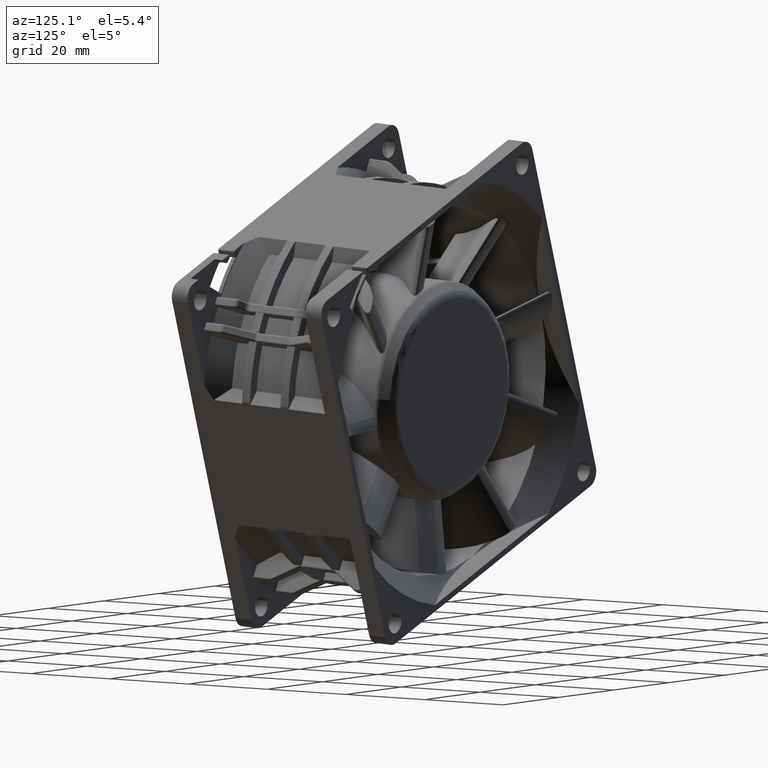
[diagram: clean part render]
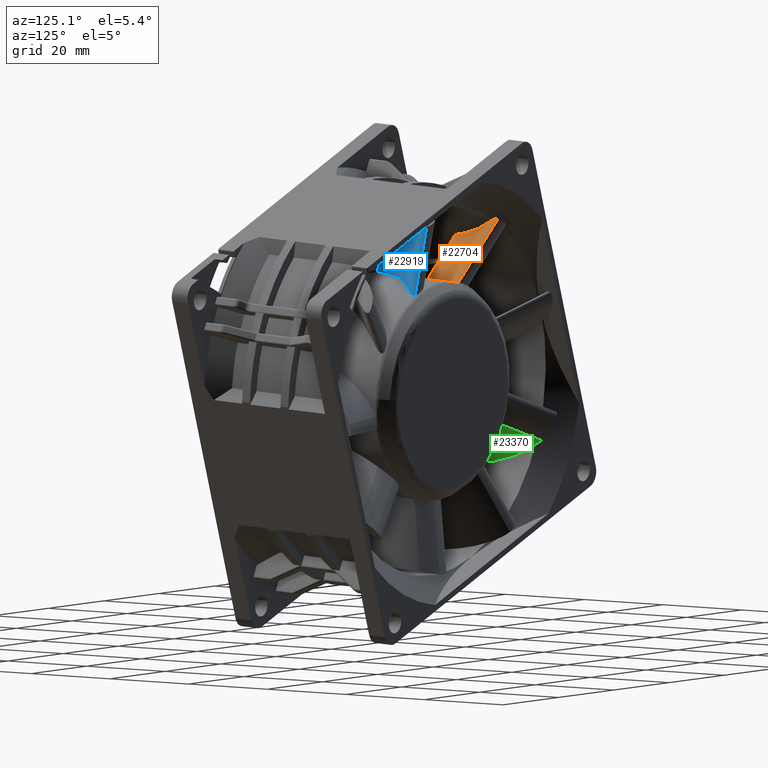
[diagram: same view with three faces highlighted in distinct colors, each labeled with its STEP entity id]
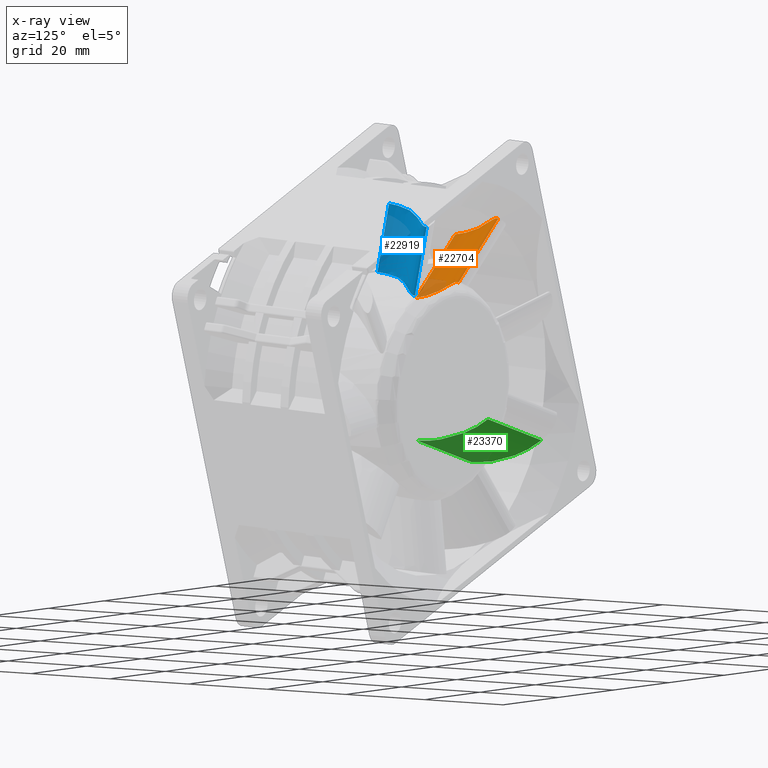
[diagram: x-ray of the same camera — body ghosted, the three highlighted faces saturated]
A machine part, auxiliary view with three faces highlighted in distinct colors.
The next image is the same camera in x-ray (body ghosted, the three faces saturated) — at least one of them is partly hidden behind the body in this view.
Their STEP definitions:

[orange] entity #22704 — the highlighted face is a SurfaceOfExtrusion surface.
#19799=CARTESIAN_POINT('',(3.549328478258E1,-1.329047536180E1,
-8.879601560067E-1));
#19825=DIRECTION('',(-8.365190583410E-1,4.828738773098E-1,-2.589762221597E-1));
#19826=VECTOR('',#19825,1.573341696852E1);
#19827=CARTESIAN_POINT('',(2.952433648728E1,-2.376382844852E1,
-1.892785942185E1));
#19828=LINE('',#19827,#19826);
#19840=CARTESIAN_POINT('',(2.952433648728E1,-2.376382844852E1,
-1.892785942185E1));
#19841=CARTESIAN_POINT('',(2.955868248430E1,-2.372115690006E1,
-1.869668788201E1));
#19842=CARTESIAN_POINT('',(2.964653497294E1,-2.361178899938E1,
-1.821373325984E1));
#19843=CARTESIAN_POINT('',(2.982567520233E1,-2.338524872169E1,
-1.742325371674E1));
#19844=CARTESIAN_POINT('',(3.002611256925E1,-2.312759493593E1,
-1.655639866587E1));
#19845=CARTESIAN_POINT('',(3.027773398589E1,-2.279787313783E1,
-1.559685496907E1));
#19846=CARTESIAN_POINT('',(3.059052325993E1,-2.237710725710E1,
-1.455360265960E1));
#19847=CARTESIAN_POINT('',(3.094650019218E1,-2.188319242514E1,
-1.341602564508E1));
#19848=CARTESIAN_POINT('',(3.137966612832E1,-2.125947090370E1,
-1.216811637779E1));
#19849=CARTESIAN_POINT('',(3.187983362224E1,-2.050310378849E1,
-1.081983256840E1));
#19850=CARTESIAN_POINT('',(3.236390063875E1,-1.972918143011E1,
-9.607369357597E0));
#19851=CARTESIAN_POINT('',(3.278532509070E1,-1.901956446431E1,
-8.582536806967E0));
#19852=CARTESIAN_POINT('',(3.316709975340E1,-1.834494183432E1,
-7.694715361310E0));
#19853=CARTESIAN_POINT('',(3.350314559420E1,-1.772298201250E1,
-6.906820862087E0));
#19854=CARTESIAN_POINT('',(3.380527067259E1,-1.713892034478E1,
-6.224793116004E0));
#19855=CARTESIAN_POINT('',(3.406613513208E1,-1.661365170214E1,
-5.615247119368E0));
#19856=CARTESIAN_POINT('',(3.430069995115E1,-1.612334289100E1,
-5.080905101845E0));
#19857=CARTESIAN_POINT('',(3.450694222444E1,-1.567648968188E1,
-4.598644224361E0));
#19858=CARTESIAN_POINT('',(3.468521263026E1,-1.527752959178E1,
-4.151151046366E0));
#19859=CARTESIAN_POINT('',(3.484158050134E1,-1.491711456767E1,
-3.739067944254E0));
#19860=CARTESIAN_POINT('',(3.497818816780E1,-1.459358430945E1,
-3.356093026859E0));
#19861=CARTESIAN_POINT('',(3.509571747169E1,-1.430829844879E1,
-2.997541398910E0));
#19862=CARTESIAN_POINT('',(3.519389551332E1,-1.406484854213E1,
-2.660658894678E0));
#19863=CARTESIAN_POINT('',(3.528057425572E1,-1.384585012853E1,
-2.355519499720E0));
#19864=CARTESIAN_POINT('',(3.535551158342E1,-1.365319301972E1,
-2.072255583865E0));
#19865=CARTESIAN_POINT('',(3.541591784441E1,-1.349554579345E1,
-1.804411829672E0));
#19866=CARTESIAN_POINT('',(3.545878219634E1,-1.338236459557E1,
-1.551170744606E0));
#19867=CARTESIAN_POINT('',(3.548410535864E1,-1.331499276519E1,
-1.317457691809E0));
#19868=CARTESIAN_POINT('',(3.549559549516E1,-1.328430350397E1,
-1.096838477046E0));
#19869=CARTESIAN_POINT('',(3.549528526570E1,-1.328513291052E1,
-9.564034149135E-1));
#19870=CARTESIAN_POINT('',(3.549328478258E1,-1.329047536180E1,
-8.879601560067E-1));
#19872=DIRECTION('',(8.365163037378E-1,-4.829629131445E-1,2.588190451025E-1));
#19873=VECTOR('',#19872,1.578284329382E1);
#19874=CARTESIAN_POINT('',(2.229067904796E1,-5.667947386913E0,
-4.972860586316E0));
#19875=LINE('',#19874,#19873);
#19880=CARTESIAN_POINT('',(1.636303334029E1,-1.616657239360E1,
-2.300244031002E1));
#19881=CARTESIAN_POINT('',(1.640297638061E1,-1.612614216828E1,
-2.276560563391E1));
#19882=CARTESIAN_POINT('',(1.650299334954E1,-1.601948560846E1,
-2.227207035866E1));
#19883=CARTESIAN_POINT('',(1.670390415911E1,-1.581216534400E1,
-2.148911639837E1));
#19884=CARTESIAN_POINT('',(1.692941884003E1,-1.557030891032E1,
-2.061750770337E1));
#19885=CARTESIAN_POINT('',(1.720969841524E1,-1.526120974932E1,
-1.965326615314E1));
#19886=CARTESIAN_POINT('',(1.756163080875E1,-1.485585012776E1,
-1.858638808756E1));
#19887=CARTESIAN_POINT('',(1.795552688554E1,-1.437920545977E1,
-1.742877101827E1));
#19888=CARTESIAN_POINT('',(1.844557974600E1,-1.374839490272E1,
-1.611759991414E1));
#19889=CARTESIAN_POINT('',(1.898455494764E1,-1.299559452538E1,
-1.474171724404E1));
#19890=CARTESIAN_POINT('',(1.948792173182E1,-1.222582450602E1,
-1.352433906215E1));
#19891=CARTESIAN_POINT('',(1.990726513036E1,-1.152858780159E1,
-1.251601354812E1));
#19892=CARTESIAN_POINT('',(2.028416819153E1,-1.085061321545E1,
-1.163498717044E1));
#19893=CARTESIAN_POINT('',(2.060547332632E1,-1.022585267218E1,
-1.085537386262E1));
#19894=CARTESIAN_POINT('',(2.088966988938E1,-9.630788412197E0,
-1.018221488596E1));
#19895=CARTESIAN_POINT('',(2.112915942700E1,-9.092033522554E0,
-9.576660806591E0));
#19896=CARTESIAN_POINT('',(2.133920302977E1,-8.586565824280E0,
-9.053229844746E0));
#19897=CARTESIAN_POINT('',(2.151723733690E1,-8.128926449222E0,
-8.580638286381E0));
#19898=CARTESIAN_POINT('',(2.166733607177E1,-7.719017604105E0,
-8.145103323105E0));
#19899=CARTESIAN_POINT('',(2.179533540933E1,-7.349088653778E0,
-7.745924308187E0));
#19900=CARTESIAN_POINT('',(2.190456148256E1,-7.016140794634E0,
-7.375386171625E0));
#19901=CARTESIAN_POINT('',(2.199586745305E1,-6.723704136185E0,
-7.029625791011E0));
#19902=CARTESIAN_POINT('',(2.207073786709E1,-6.4732381E0,-6.705331121679E0));
#19903=CARTESIAN_POINT('',(2.213596832230E1,-6.246232177921E0,
-6.411339576968E0));
#19904=CARTESIAN_POINT('',(2.219103043717E1,-6.047320266181E0,
-6.138861173397E0));
#19905=CARTESIAN_POINT('',(2.223499506345E1,-5.883202404380E0,
-5.878793445654E0));
#19906=CARTESIAN_POINT('',(2.226563419498E1,-5.765805288214E0,
-5.633859268910E0));
#19907=CARTESIAN_POINT('',(2.228401630200E1,-5.694159507859E0,
-5.402406217115E0));
#19908=CARTESIAN_POINT('',(2.229229643079E1,-5.661583899320E0,
-5.184159972182E0));
#19909=CARTESIAN_POINT('',(2.229213938244E1,-5.662204241315E0,
-5.042415255237E0));
#19910=CARTESIAN_POINT('',(2.229067904796E1,-5.667947386913E0,
-4.972860586316E0));
#20273=CARTESIAN_POINT('',(1.636303334029E1,-1.616657239360E1,
-2.300244031002E1));
#21472=VERTEX_POINT('',#20273);
#21545=VERTEX_POINT('',#19799);
#21546=VERTEX_POINT('',#19840);
#21549=CARTESIAN_POINT('',(2.229067904796E1,-5.667947386913E0,
-4.972860586316E0));
#21550=VERTEX_POINT('',#21549);
#22646=CARTESIAN_POINT('',(1.637329944379E1,-1.622645546129E1,
-2.320941635329E1));
#22647=CARTESIAN_POINT('',(1.636479583610E1,-1.620483152081E1,
-2.314158143803E1));
#22648=CARTESIAN_POINT('',(1.635692190343E1,-1.618174374666E1,
-2.307305011450E1));
#22649=CARTESIAN_POINT('',(1.630967165335E1,-1.602342146914E1,
-2.262490151377E1));
#22650=CARTESIAN_POINT('',(1.628107032668E1,-1.577317337798E1,
-2.206549127744E1));
#22651=CARTESIAN_POINT('',(1.625929237828E1,-1.541646703217E1,
-2.132948073879E1));
#22652=CARTESIAN_POINT('',(1.624548084127E1,-1.513890555945E1,
-2.076690439023E1));
#22653=CARTESIAN_POINT('',(1.624296817642E1,-1.484082766108E1,
-2.020256239909E1));
#22654=CARTESIAN_POINT('',(1.625820831212E1,-1.451634496235E1,
-1.964632633305E1));
#22655=CARTESIAN_POINT('',(1.628051853847E1,-1.418071844504E1,
-1.909214651068E1));
#22656=CARTESIAN_POINT('',(1.630622049307E1,-1.383767346019E1,
-1.853508587743E1));
#22657=CARTESIAN_POINT('',(1.634509895568E1,-1.347480847562E1,
-1.798362776456E1));
#22658=CARTESIAN_POINT('',(1.639223536098E1,-1.309735636350E1,
-1.743163979143E1));
#22659=CARTESIAN_POINT('',(1.644755845879E1,-1.270908253703E1,
-1.688591803057E1));
#22660=CARTESIAN_POINT('',(1.651623874194E1,-1.230291016812E1,
-1.634996823648E1));
#22661=CARTESIAN_POINT('',(1.658620764986E1,-1.189307996643E1,
-1.581135773426E1));
#22662=CARTESIAN_POINT('',(1.666587084258E1,-1.146979926179E1,
-1.527898067282E1));
#22663=CARTESIAN_POINT('',(1.675738822736E1,-1.102944954353E1,
-1.475306574938E1));
#22664=CARTESIAN_POINT('',(1.685246194080E1,-1.058488269482E1,
-1.423077578833E1));
#22665=CARTESIAN_POINT('',(1.695743647387E1,-1.012616591369E1,
-1.371408164597E1));
#22666=CARTESIAN_POINT('',(1.706709044625E1,-9.658985032822E0,
-1.319671746408E1));
#22667=CARTESIAN_POINT('',(1.716657544186E1,-9.260521539667E0,
-1.277471502380E1));
#22668=CARTESIAN_POINT('',(1.725027835747E1,-8.937600533204E0,
-1.244266829830E1));
#22669=CARTESIAN_POINT('',(1.731147554285E1,-8.697255242550E0,
-1.219197029270E1));
#22670=CARTESIAN_POINT('',(1.737412925629E1,-8.452439854746E0,
-1.193763854494E1));
#22671=CARTESIAN_POINT('',(1.746228319996E1,-8.120134937656E0,
-1.160246715268E1));
#22672=CARTESIAN_POINT('',(1.755398889139E1,-7.785830208430E0,
-1.127504348939E1));
#22673=CARTESIAN_POINT('',(1.764562851225E1,-7.452085352886E0,
-1.094845102115E1));
#22674=CARTESIAN_POINT('',(1.771410332185E1,-7.199982703253E0,
-1.069933513623E1));
#22675=CARTESIAN_POINT('',(1.778501477894E1,-6.944139460402E0,
-1.045111457786E1));
#22676=CARTESIAN_POINT('',(1.785856717891E1,-6.687464476621E0,
-1.020987763133E1));
#22677=CARTESIAN_POINT('',(1.793043242765E1,-6.436026165569E0,
-9.972959490622E0));
#22678=CARTESIAN_POINT('',(1.802277757840E1,-6.106572000599E0,
-9.656653868471E0));
#22679=CARTESIAN_POINT('',(1.813348763640E1,-5.700541102584E0,
-9.256810430424E0));
#22680=CARTESIAN_POINT('',(1.823840685965E1,-5.301793673438E0,
-8.851841858165E0));
#22681=CARTESIAN_POINT('',(1.831611689794E1,-4.992146860040E0,
-8.525195830200E0));
#22682=CARTESIAN_POINT('',(1.836985882316E1,-4.767365463149E0,
-8.279444666112E0));
#22683=CARTESIAN_POINT('',(1.841764080493E1,-4.549095831339E0,
-8.026581781049E0));
#22684=CARTESIAN_POINT('',(1.846027252313E1,-4.336901523007E0,
-7.768409690388E0));
#22685=CARTESIAN_POINT('',(1.850214943662E1,-4.127971114218E0,
-7.513888552025E0));
#22686=CARTESIAN_POINT('',(1.854820218926E1,-3.871318194483E0,
-7.183812520210E0));
#22687=CARTESIAN_POINT('',(1.857253360141E1,-3.643231685902E0,
-6.836837661219E0));
#22688=CARTESIAN_POINT('',(1.853675754838E1,-3.500205842356E0,
-6.454317782669E0));
#22689=CARTESIAN_POINT('',(1.848001320407E1,-3.454318628441E0,
-6.185290471957E0));
#22690=CARTESIAN_POINT('',(1.842632188702E1,-3.458141886469E0,
-6.018891703922E0));
#22691=CARTESIAN_POINT('',(1.840135295239E1,-3.465837159286E0,
-5.952550413140E0));
#22693=DIRECTION('',(8.365163037378E-1,-4.829629131445E-1,2.588190451025E-1));
#22694=VECTOR('',#22693,1.E0);
#22695=SURFACE_OF_LINEAR_EXTRUSION('',#22692,#22694);
#22696=ORIENTED_EDGE('',*,*,#22591,.T.);
#22698=ORIENTED_EDGE('',*,*,#22697,.F.);
#22700=ORIENTED_EDGE('',*,*,#22699,.F.);
#22701=ORIENTED_EDGE('',*,*,#22635,.F.);
#22702=EDGE_LOOP('',(#22696,#22698,#22700,#22701));
#22703=FACE_OUTER_BOUND('',#22702,.F.);
#19871=B_SPLINE_CURVE_WITH_KNOTS('',3,(#19840,#19841,#19842,#19843,#19844,
#19845,#19846,#19847,#19848,#19849,#19850,#19851,#19852,#19853,#19854,#19855,
#19856,#19857,#19858,#19859,#19860,#19861,#19862,#19863,#19864,#19865,#19866,
#19867,#19868,#19869,#19870),.UNSPECIFIED.,.F.,.F.,(4,1,1,1,1,1,1,1,1,1,1,1,1,1,
1,1,1,1,1,1,1,1,1,1,1,1,1,1,4),(0.E0,3.571428571429E-2,7.142857142857E-2,
1.071428571429E-1,1.428571428571E-1,1.785714285714E-1,2.142857142857E-1,2.5E-1,
2.857142857143E-1,3.214285714286E-1,3.571428571429E-1,3.928571428571E-1,
4.285714285714E-1,4.642857142857E-1,5.E-1,5.357142857143E-1,5.714285714286E-1,
6.071428571429E-1,6.428571428571E-1,6.785714285714E-1,7.142857142857E-1,7.5E-1,
7.857142857143E-1,8.214285714286E-1,8.571428571429E-1,8.928571428571E-1,
9.285714285714E-1,9.642857142857E-1,1.E0),.UNSPECIFIED.);
#19911=B_SPLINE_CURVE_WITH_KNOTS('',3,(#19880,#19881,#19882,#19883,#19884,
#19885,#19886,#19887,#19888,#19889,#19890,#19891,#19892,#19893,#19894,#19895,
#19896,#19897,#19898,#19899,#19900,#19901,#19902,#19903,#19904,#19905,#19906,
#19907,#19908,#19909,#19910),.UNSPECIFIED.,.F.,.F.,(4,1,1,1,1,1,1,1,1,1,1,1,1,1,
1,1,1,1,1,1,1,1,1,1,1,1,1,1,4),(0.E0,3.571428571429E-2,7.142857142857E-2,
1.071428571429E-1,1.428571428571E-1,1.785714285714E-1,2.142857142857E-1,2.5E-1,
2.857142857143E-1,3.214285714286E-1,3.571428571429E-1,3.928571428571E-1,
4.285714285714E-1,4.642857142857E-1,5.E-1,5.357142857143E-1,5.714285714286E-1,
6.071428571429E-1,6.428571428571E-1,6.785714285714E-1,7.142857142857E-1,7.5E-1,
7.857142857143E-1,8.214285714286E-1,8.571428571429E-1,8.928571428571E-1,
9.285714285714E-1,9.642857142857E-1,1.E0),.UNSPECIFIED.);
#22591=EDGE_CURVE('',#21546,#21545,#19871,.T.);
#22635=EDGE_CURVE('',#21546,#21472,#19828,.T.);
#22692=B_SPLINE_CURVE_WITH_KNOTS('',3,(#22646,#22647,#22648,#22649,#22650,
#22651,#22652,#22653,#22654,#22655,#22656,#22657,#22658,#22659,#22660,#22661,
#22662,#22663,#22664,#22665,#22666,#22667,#22668,#22669,#22670,#22671,#22672,
#22673,#22674,#22675,#22676,#22677,#22678,#22679,#22680,#22681,#22682,#22683,
#22684,#22685,#22686,#22687,#22688,#22689,#22690,#22691),.UNSPECIFIED.,.F.,.F.,(
4,1,1,1,1,1,1,1,1,1,1,1,1,1,1,1,1,1,1,1,1,1,1,1,1,1,1,1,1,1,1,1,1,1,1,1,1,1,1,1,
1,1,1,4),(0.E0,9.802130917789E-3,9.950364144917E-3,6.535927681389E-2,
9.347149926664E-2,1.219611359329E-1,1.512087611536E-1,1.807771789181E-1,
2.100813157191E-1,2.399220393408E-1,2.703579206765E-1,3.005543447873E-1,
3.316516440799E-1,3.623012197482E-1,3.930457365552E-1,4.247585402269E-1,
4.559910377279E-1,4.877341170743E-1,5.195060614917E-1,5.516180550636E-1,
5.842915356401E-1,6.000747088317E-1,6.160255545299E-1,6.325476851251E-1,
6.491350041873E-1,6.817251518368E-1,6.977964688311E-1,7.142521053957E-1,
7.311209057249E-1,7.475286988990E-1,7.634919611819E-1,7.794071820210E-1,
8.112888621984E-1,8.429251505732E-1,8.584835036414E-1,8.737873128445E-1,
8.890830752422E-1,9.046477564437E-1,9.198917027674E-1,9.344854209169E-1,
9.622829387245E-1,9.761064407826E-1,9.902179274187E-1,1.E0),.UNSPECIFIED.);
#22697=EDGE_CURVE('',#21550,#21545,#19875,.T.);
#22699=EDGE_CURVE('',#21472,#21550,#19911,.T.);
#22704=ADVANCED_FACE('',(#22703),#22695,.T.);

[blue] entity #22919 — the highlighted face is a SurfaceOfExtrusion surface.
#19995=CARTESIAN_POINT('',(3.573238646515E1,1.263354888800E1,
-8.879601560054E-1));
#20008=DIRECTION('',(-9.511961214814E-1,-1.678012367478E-1,-2.589762217360E-1));
#20009=VECTOR('',#20008,1.573341696737E1);
#20010=CARTESIAN_POINT('',(3.789204838821E1,7.737289480020E-1,
-1.892785942186E1));
#20011=LINE('',#20010,#20009);
#20027=CARTESIAN_POINT('',(3.789204838821E1,7.737289480020E-1,
-1.892785942186E1));
#20028=CARTESIAN_POINT('',(3.789093021224E1,8.284941135487E-1,
-1.869668922584E1));
#20029=CARTESIAN_POINT('',(3.788792881486E1,9.687442565257E-1,
-1.821373758610E1));
#20030=CARTESIAN_POINT('',(3.787954099041E1,1.257431098412E0,
-1.742326300956E1));
#20031=CARTESIAN_POINT('',(3.786746839385E1,1.583641408976E0,
-1.655641501601E1));
#20032=CARTESIAN_POINT('',(3.784828079627E1,1.997957496894E0,
-1.559687707695E1));
#20033=CARTESIAN_POINT('',(3.781742867733E1,2.521334648987E0,
-1.455363486906E1));
#20034=CARTESIAN_POINT('',(3.777264159151E1,3.128501883328E0,
-1.341607384548E1));
#20035=CARTESIAN_POINT('',(3.770354752102E1,3.884720623791E0,
-1.216817815022E1));
#20036=CARTESIAN_POINT('',(3.760051381851E1,4.785648225652E0,
-1.081986786080E1));
#20037=CARTESIAN_POINT('',(3.747386160179E1,5.689671733759E0,
-9.607385658596E0));
#20038=CARTESIAN_POINT('',(3.734055819950E1,6.504159408732E0,
-8.582548565747E0));
#20039=CARTESIAN_POINT('',(3.719937419100E1,7.266358147210E0,
-7.694717280197E0));
#20040=CARTESIAN_POINT('',(3.705701094259E1,7.958818898889E0,
-6.906816422019E0));
#20041=CARTESIAN_POINT('',(3.691302359200E1,8.600442206446E0,
-6.224785018698E0));
#20042=CARTESIAN_POINT('',(3.677522076887E1,9.170502901629E0,
-5.615237533948E0));
#20043=CARTESIAN_POINT('',(3.663974302299E1,9.696877560566E0,
-5.080895426651E0));
#20044=CARTESIAN_POINT('',(3.651050211288E1,1.017175626829E1,
-4.598634590103E0));
#20045=CARTESIAN_POINT('',(3.639061870161E1,1.059196657216E1,
-4.151142111379E0));
#20046=CARTESIAN_POINT('',(3.627873340869E1,1.096857059038E1,
-3.739060044241E0));
#20047=CARTESIAN_POINT('',(3.617541998959E1,1.130421774574E1,
-3.356086072914E0));
#20048=CARTESIAN_POINT('',(3.608207471263E1,1.159830477241E1,
-2.997535011100E0));
#20049=CARTESIAN_POINT('',(3.600079711673E1,1.184790499494E1,
-2.660653247280E0));
#20050=CARTESIAN_POINT('',(3.592642755077E1,1.207138305894E1,
-2.355514522254E0));
#20051=CARTESIAN_POINT('',(3.585999547937E1,1.226713508017E1,
-2.072251035985E0));
#20052=CARTESIAN_POINT('',(3.580493593736E1,1.242672746402E1,
-1.804407764356E0));
#20053=CARTESIAN_POINT('',(3.576502073917E1,1.254098116120E1,
-1.551167043786E0));
#20054=CARTESIAN_POINT('',(3.574111392519E1,1.260886754638E1,
-1.317455060020E0));
#20055=CARTESIAN_POINT('',(3.573018937517E1,1.263976211625E1,
-1.096837306832E0));
#20056=CARTESIAN_POINT('',(3.573048487332E1,1.263892729866E1,
-9.564030303642E-1));
#20057=CARTESIAN_POINT('',(3.573238646515E1,1.263354888800E1,
-8.879601560054E-1));
#20059=DIRECTION('',(9.512512425642E-1,1.677312594964E-1,2.588190451025E-1));
#20060=VECTOR('',#20059,1.578284329383E1);
#20061=CARTESIAN_POINT('',(2.071893717070E1,9.986272703892E0,
-4.972860586316E0));
#20062=LINE('',#20061,#20060);
#20080=CARTESIAN_POINT('',(2.292648319120E1,-1.866357877391E0,
-2.300244030307E1));
#20081=CARTESIAN_POINT('',(2.293109324625E1,-1.809712142116E0,
-2.276560774075E1));
#20082=CARTESIAN_POINT('',(2.293915281281E1,-1.663722907495E0,
-2.227208727974E1));
#20083=CARTESIAN_POINT('',(2.295979521375E1,-1.375785805061E0,
-2.148918646412E1));
#20084=CARTESIAN_POINT('',(2.297708600767E1,-1.045584787246E0,
-2.061766125017E1));
#20085=CARTESIAN_POINT('',(2.299310640557E1,-6.287117039218E-1,
-1.965353089350E1));
#20086=CARTESIAN_POINT('',(2.300214484424E1,-9.203003677735E-2,
-1.858676204731E1));
#20087=CARTESIAN_POINT('',(2.299751175259E1,5.262155962141E-1,
-1.742923685907E1));
#20088=CARTESIAN_POINT('',(2.296745147311E1,1.324354024694E0,
-1.611814116096E1));
#20089=CARTESIAN_POINT('',(2.289645434491E1,2.247497538511E0,
-1.474219174305E1));
#20090=CARTESIAN_POINT('',(2.278725264655E1,3.160860988391E0,
-1.352460440813E1));
#20091=CARTESIAN_POINT('',(2.266031773700E1,3.964534770867E0,
-1.251625717116E1));
#20092=CARTESIAN_POINT('',(2.251325209033E1,4.726180989740E0,
-1.163518447614E1));
#20093=CARTESIAN_POINT('',(2.235779229812E1,5.411352563757E0,
-1.085552195496E1));
#20094=CARTESIAN_POINT('',(2.219299284198E1,6.049915998355E0,
-1.018231094993E1));
#20095=CARTESIAN_POINT('',(2.203013154498E1,6.616629065863E0,
-9.576693405276E0));
#20096=CARTESIAN_POINT('',(2.186611003338E1,7.138903606203E0,
-9.053210441749E0));
#20097=CARTESIAN_POINT('',(2.170831682603E1,7.603942034293E0,
-8.580589285022E0));
#20098=CARTESIAN_POINT('',(2.155980958961E1,8.014443028468E0,
-8.145040666421E0));
#20099=CARTESIAN_POINT('',(2.142007588259E1,8.380101305593E0,
-7.745859393250E0));
#20100=CARTESIAN_POINT('',(2.128973436512E1,8.705357814167E0,
-7.375324576641E0));
#20101=CARTESIAN_POINT('',(2.117170598017E1,8.988061346784E0,
-7.029565586561E0));
#20102=CARTESIAN_POINT('',(2.106806623538E1,9.228047766930E0,
-6.705277471288E0));
#20103=CARTESIAN_POINT('',(2.097212079116E1,9.443868827454E0,
-6.411292490125E0));
#20104=CARTESIAN_POINT('',(2.088644651026E1,9.631628378219E0,
-6.138822184681E0));
#20105=CARTESIAN_POINT('',(2.081463560975E1,9.785602674572E0,
-5.878759256240E0));
#20106=CARTESIAN_POINT('',(2.076264860589E1,9.895221021017E0,
-5.633830294970E0));
#20107=CARTESIAN_POINT('',(2.073068024901E1,9.961914036561E0,
-5.402386290507E0));
#20108=CARTESIAN_POINT('',(2.071608574256E1,9.992187143181E0,
-5.184151345705E0));
#20109=CARTESIAN_POINT('',(2.071636433186E1,9.991610680113E0,
-5.042412473957E0));
#20110=CARTESIAN_POINT('',(2.071893717070E1,9.986272703892E0,
-4.972860586316E0));
#20214=CARTESIAN_POINT('',(2.292648319120E1,-1.866357877391E0,
-2.300244030307E1));
#21478=VERTEX_POINT('',#20214);
#21558=VERTEX_POINT('',#19995);
#21559=VERTEX_POINT('',#20027);
#21562=CARTESIAN_POINT('',(2.071893717070E1,9.986272703892E0,
-4.972860586316E0));
#21563=VERTEX_POINT('',#21562);
#22861=CARTESIAN_POINT('',(2.297283957383E1,-1.905632024824E0,
-2.320941635208E1));
#22862=CARTESIAN_POINT('',(2.295242583166E1,-1.894533139705E0,
-2.314158143808E1));
#22863=CARTESIAN_POINT('',(2.293155351413E1,-1.881908144976E0,
-2.307305011453E1));
#22864=CARTESIAN_POINT('',(2.279359012429E1,-1.790998119365E0,
-2.262490151377E1));
#22865=CARTESIAN_POINT('',(2.261082386458E1,-1.617681538127E0,
-2.206549127744E1));
#22866=CARTESIAN_POINT('',(2.236485456885E1,-1.358427219489E0,
-2.132948073879E1));
#22867=CARTESIAN_POINT('',(2.217586124208E1,-1.154680680547E0,
-2.076690439023E1));
#22868=CARTESIAN_POINT('',(2.198233564934E1,-9.279548727237E-1,
-2.020256239909E1));
#22869=CARTESIAN_POINT('',(2.178543681230E1,-6.695905340733E-1,
-1.964632633305E1));
#22870=CARTESIAN_POINT('',(2.158679087041E1,-3.981449684582E-1,
-1.909214651068E1));
#22871=CARTESIAN_POINT('',(2.138597464409E1,-1.188363661099E-1,
-1.853508587743E1));
#22872=CARTESIAN_POINT('',(2.118251215826E1,1.841249329705E-1,
-1.798362776456E1));
#22873=CARTESIAN_POINT('',(2.097599919868E1,5.035687232919E-1,
-1.743163979143E1));
#22874=CARTESIAN_POINT('',(2.076880154552E1,8.365647322715E-1,
-1.688591803057E1));
#22875=CARTESIAN_POINT('',(2.056033112864E1,1.191857653461E0,
-1.634996823648E1));
#22876=CARTESIAN_POINT('',(2.035049664603E1,1.550780949169E0,
-1.581135773426E1));
#22877=CARTESIAN_POINT('',(2.013944259977E1,1.926239294060E0,
-1.527898067282E1));
#22878=CARTESIAN_POINT('',(1.992649764100E1,2.322392989768E0,
-1.475306574938E1));
#22879=CARTESIAN_POINT('',(1.971356626884E1,2.724063158832E0,
-1.423077578833E1));
#22880=CARTESIAN_POINT('',(1.949912396330E1,3.142936929171E0,
-1.371408164597E1));
#22881=CARTESIAN_POINT('',(1.928282569780E1,3.571302461683E0,
-1.319671746408E1));
#22882=CARTESIAN_POINT('',(1.910290822956E1,3.940490928933E0,
-1.277471502380E1));
#22883=CARTESIAN_POINT('',(1.895945876107E1,4.241665968546E0,
-1.244266829830E1));
#22884=CARTESIAN_POINT('',(1.885184754999E1,4.465117935395E0,
-1.219197029270E1));
#22885=CARTESIAN_POINT('',(1.874247878106E1,4.692930433511E0,
-1.193763854494E1));
#22886=CARTESIAN_POINT('',(1.859640713641E1,5.004155031405E0,
-1.160246715268E1));
#22887=CARTESIAN_POINT('',(1.845177083393E1,5.319194593728E0,
-1.127504348939E1));
#22888=CARTESIAN_POINT('',(1.830744379831E1,5.633762798580E0,
-1.094845102115E1));
#22889=CARTESIAN_POINT('',(1.819785008614E1,5.870899391610E0,
-1.069933513623E1));
#22890=CARTESIAN_POINT('',(1.808771854728E1,6.112467692112E0,
-1.045111457786E1));
#22891=CARTESIAN_POINT('',(1.797907545526E1,6.356370708489E0,
-1.020987763133E1));
#22892=CARTESIAN_POINT('',(1.787250599876E1,6.595177720910E0,
-9.972959490622E0));
#22893=CARTESIAN_POINT('',(1.773147743315E1,6.906912571965E0,
-9.656653868471E0));
#22894=CARTESIAN_POINT('',(1.755529462748E1,7.289113338676E0,
-9.256810430424E0));
#22895=CARTESIAN_POINT('',(1.737935750857E1,7.662012367702E0,
-8.851841858165E0));
#22896=CARTESIAN_POINT('',(1.723984971656E1,7.949166638201E0,
-8.525195830200E0));
#22897=CARTESIAN_POINT('',(1.713653172292E1,8.155903821858E0,
-8.279444666112E0));
#22898=CARTESIAN_POINT('',(1.703283382964E1,8.353821726256E0,
-8.026581781049E0));
#22899=CARTESIAN_POINT('',(1.692909574823E1,8.543775137252E0,
-7.768409690388E0));
#22900=CARTESIAN_POINT('',(1.682687744704E1,8.730743077026E0,
-7.513888552025E0));
#22901=CARTESIAN_POINT('',(1.669718258550E1,8.956952758789E0,
-7.183812520210E0));
#22902=CARTESIAN_POINT('',(1.656921034692E1,9.147317091493E0,
-6.836837661219E0));
#22903=CARTESIAN_POINT('',(1.644986906020E1,9.233884840551E0,
-6.454317782669E0));
#22904=CARTESIAN_POINT('',(1.637690463802E1,9.232561924341E0,
-6.185290471957E0));
#22905=CARTESIAN_POINT('',(1.633823224583E1,9.195121025425E0,
-6.018891703922E0));
#22906=CARTESIAN_POINT('',(1.632405135822E1,9.173176382634E0,
-5.952550413140E0));
#22908=DIRECTION('',(9.512512425642E-1,1.677312594965E-1,2.588190451025E-1));
#22909=VECTOR('',#22908,1.E0);
#22910=SURFACE_OF_LINEAR_EXTRUSION('',#22907,#22909);
#22911=ORIENTED_EDGE('',*,*,#22806,.T.);
#22913=ORIENTED_EDGE('',*,*,#22912,.F.);
#22915=ORIENTED_EDGE('',*,*,#22914,.F.);
#22916=ORIENTED_EDGE('',*,*,#22850,.F.);
#22917=EDGE_LOOP('',(#22911,#22913,#22915,#22916));
#22918=FACE_OUTER_BOUND('',#22917,.F.);
#20058=B_SPLINE_CURVE_WITH_KNOTS('',3,(#20027,#20028,#20029,#20030,#20031,
#20032,#20033,#20034,#20035,#20036,#20037,#20038,#20039,#20040,#20041,#20042,
#20043,#20044,#20045,#20046,#20047,#20048,#20049,#20050,#20051,#20052,#20053,
#20054,#20055,#20056,#20057),.UNSPECIFIED.,.F.,.F.,(4,1,1,1,1,1,1,1,1,1,1,1,1,1,
1,1,1,1,1,1,1,1,1,1,1,1,1,1,4),(0.E0,3.571428571429E-2,7.142857142857E-2,
1.071428571429E-1,1.428571428571E-1,1.785714285714E-1,2.142857142857E-1,2.5E-1,
2.857142857143E-1,3.214285714286E-1,3.571428571429E-1,3.928571428571E-1,
4.285714285714E-1,4.642857142857E-1,5.E-1,5.357142857143E-1,5.714285714286E-1,
6.071428571429E-1,6.428571428571E-1,6.785714285714E-1,7.142857142857E-1,7.5E-1,
7.857142857143E-1,8.214285714286E-1,8.571428571429E-1,8.928571428571E-1,
9.285714285714E-1,9.642857142857E-1,1.E0),.UNSPECIFIED.);
#20111=B_SPLINE_CURVE_WITH_KNOTS('',3,(#20080,#20081,#20082,#20083,#20084,
#20085,#20086,#20087,#20088,#20089,#20090,#20091,#20092,#20093,#20094,#20095,
#20096,#20097,#20098,#20099,#20100,#20101,#20102,#20103,#20104,#20105,#20106,
#20107,#20108,#20109,#20110),.UNSPECIFIED.,.F.,.F.,(4,1,1,1,1,1,1,1,1,1,1,1,1,1,
1,1,1,1,1,1,1,1,1,1,1,1,1,1,4),(0.E0,3.571428571429E-2,7.142857142857E-2,
1.071428571429E-1,1.428571428571E-1,1.785714285714E-1,2.142857142857E-1,2.5E-1,
2.857142857143E-1,3.214285714286E-1,3.571428571429E-1,3.928571428571E-1,
4.285714285714E-1,4.642857142857E-1,5.E-1,5.357142857143E-1,5.714285714286E-1,
6.071428571429E-1,6.428571428571E-1,6.785714285714E-1,7.142857142857E-1,7.5E-1,
7.857142857143E-1,8.214285714286E-1,8.571428571429E-1,8.928571428571E-1,
9.285714285714E-1,9.642857142857E-1,1.E0),.UNSPECIFIED.);
#22806=EDGE_CURVE('',#21559,#21558,#20058,.T.);
#22850=EDGE_CURVE('',#21559,#21478,#20011,.T.);
#22907=B_SPLINE_CURVE_WITH_KNOTS('',3,(#22861,#22862,#22863,#22864,#22865,
#22866,#22867,#22868,#22869,#22870,#22871,#22872,#22873,#22874,#22875,#22876,
#22877,#22878,#22879,#22880,#22881,#22882,#22883,#22884,#22885,#22886,#22887,
#22888,#22889,#22890,#22891,#22892,#22893,#22894,#22895,#22896,#22897,#22898,
#22899,#22900,#22901,#22902,#22903,#22904,#22905,#22906),.UNSPECIFIED.,.F.,.F.,(
4,1,1,1,1,1,1,1,1,1,1,1,1,1,1,1,1,1,1,1,1,1,1,1,1,1,1,1,1,1,1,1,1,1,1,1,1,1,1,1,
1,1,1,4),(0.E0,9.802130920595E-3,9.950364148039E-3,6.535927681684E-2,
9.347149926950E-2,1.219611359358E-1,1.512087611563E-1,1.807771789207E-1,
2.100813157215E-1,2.399220393431E-1,2.703579206788E-1,3.005543447895E-1,
3.316516440820E-1,3.623012197502E-1,3.930457365571E-1,4.247585402287E-1,
4.559910377296E-1,4.877341170759E-1,5.195060614932E-1,5.516180550650E-1,
5.842915356414E-1,6.000747088329E-1,6.160255545311E-1,6.325476851262E-1,
6.491350041884E-1,6.817251518377E-1,6.977964688321E-1,7.142521053965E-1,
7.311209057258E-1,7.475286988999E-1,7.634919611827E-1,7.794071820217E-1,
8.112888621991E-1,8.429251505736E-1,8.584835036419E-1,8.737873128449E-1,
8.890830752426E-1,9.046477564440E-1,9.198917027677E-1,9.344854209171E-1,
9.622829387247E-1,9.761064407827E-1,9.902179274188E-1,1.E0),.UNSPECIFIED.);
#22912=EDGE_CURVE('',#21563,#21558,#20062,.T.);
#22914=EDGE_CURVE('',#21478,#21563,#20111,.T.);
#22919=ADVANCED_FACE('',(#22918),#22910,.T.);

[green] entity #23370 — the highlighted face is a SurfaceOfExtrusion surface.
#20458=CARTESIAN_POINT('',(-1.894508991550E1,-3.282519715239E1,
-1.871294592263E1));
#20459=CARTESIAN_POINT('',(-1.892452892531E1,-3.283706394503E1,
-1.814758100583E1));
#20460=CARTESIAN_POINT('',(-1.884939219390E1,-3.288041538384E1,
-1.701678760729E1));
#20461=CARTESIAN_POINT('',(-1.861986583587E1,-3.301133602187E1,
-1.532388645189E1));
#20462=CARTESIAN_POINT('',(-1.825867119807E1,-3.321304005331E1,
-1.362643330374E1));
#20463=CARTESIAN_POINT('',(-1.778151440463E1,-3.347166792351E1,
-1.190850398334E1));
#20464=CARTESIAN_POINT('',(-1.717183294600E1,-3.378945955199E1,
-1.015496410069E1));
#20465=CARTESIAN_POINT('',(-1.646019554501E1,-3.414221864247E1,
-8.478907497481E0));
#20466=CARTESIAN_POINT('',(-1.572282268548E1,-3.448812867448E1,
-7.040124663246E0));
#20467=CARTESIAN_POINT('',(-1.494469113090E1,-3.483276827403E1,
-5.762005838436E0));
#20468=CARTESIAN_POINT('',(-1.407728621432E1,-3.519368165094E1,
-4.545392414938E0));
#20469=CARTESIAN_POINT('',(-1.335833107703E1,-3.547030268533E1,
-3.713536856550E0));
#20470=CARTESIAN_POINT('',(-1.296256343204E1,-3.561435032779E1,
-3.304852513369E0));
#20499=DIRECTION('',(3.303660895494E-1,9.076733711904E-1,-2.588190451025E-1));
#20500=VECTOR('',#20499,1.568383668351E1);
#20501=CARTESIAN_POINT('',(-1.894508991550E1,-3.282519715239E1,
-1.871294592263E1));
#20502=LINE('',#20501,#20500);
#20503=CARTESIAN_POINT('',(-1.369491769639E1,-1.847834487418E1,
-2.229499315692E1));
#20504=CARTESIAN_POINT('',(-1.363855910528E1,-1.852011410579E1,
-2.121925972968E1));
#20505=CARTESIAN_POINT('',(-1.339517645447E1,-1.870052564650E1,
-1.905964630210E1));
#20506=CARTESIAN_POINT('',(-1.262607339609E1,-1.923698111554E1,
-1.588679640260E1));
#20507=CARTESIAN_POINT('',(-1.139359414219E1,-2.000168818019E1,
-1.250842779283E1));
#20508=CARTESIAN_POINT('',(-9.826307543329E0,-2.082441457502E1,
-9.618657305385E0));
#20509=CARTESIAN_POINT('',(-8.561315428146E0,-2.136002478494E1,
-8.014825553174E0));
#20510=CARTESIAN_POINT('',(-7.866463296488E0,-2.161293027808E1,
-7.297295480592E0));
#20512=DIRECTION('',(-3.303660895493E-1,-9.076733711904E-1,2.588190451025E-1));
#20513=VECTOR('',#20512,1.542561508811E1);
#20514=CARTESIAN_POINT('',(-7.866463296488E0,-2.161293027808E1,
-7.297295480592E0));
#20515=LINE('',#20514,#20513);
#21303=CARTESIAN_POINT('',(-1.369491769639E1,-1.847834487418E1,
-2.229499315692E1));
#21304=CARTESIAN_POINT('',(-1.371954746297E1,-1.851471452297E1,
-2.245397914413E1));
#21305=CARTESIAN_POINT('',(-1.374245555500E1,-1.855174123846E1,
-2.261307184322E1));
#21306=CARTESIAN_POINT('',(-1.376368212124E1,-1.858939623667E1,
-2.277222155660E1));
#21573=VERTEX_POINT('',#20458);
#21574=VERTEX_POINT('',#20470);
#21577=CARTESIAN_POINT('',(-1.376368212124E1,-1.858939623667E1,
-2.277222155660E1));
#21578=VERTEX_POINT('',#21577);
#21579=VERTEX_POINT('',#21303);
#21580=VERTEX_POINT('',#20510);
#23338=CARTESIAN_POINT('',(-6.156774385873E0,-1.726880719473E1,
-8.431206318378E0));
#23339=CARTESIAN_POINT('',(-6.198011081530E0,-1.726410634221E1,
-8.467356545397E0));
#23340=CARTESIAN_POINT('',(-6.496555697058E0,-1.723040120499E1,
-8.730226542610E0));
#23341=CARTESIAN_POINT('',(-7.030309550784E0,-1.717550123281E1,
-9.218996333725E0));
#23342=CARTESIAN_POINT('',(-7.725801564142E0,-1.713216710624E1,
-9.954775819904E0));
#23343=CARTESIAN_POINT('',(-8.427475919199E0,-1.710380033411E1,
-1.075093689470E1));
#23344=CARTESIAN_POINT('',(-9.155969732111E0,-1.710279078036E1,
-1.167727254005E1));
#23345=CARTESIAN_POINT('',(-9.925250469301E0,-1.713476493853E1,
-1.277134334436E1));
#23346=CARTESIAN_POINT('',(-1.071865088582E1,-1.721490382019E1,
-1.406511414011E1));
#23347=CARTESIAN_POINT('',(-1.150385562013E1,-1.734656038454E1,
-1.552909518147E1));
#23348=CARTESIAN_POINT('',(-1.221147763476E1,-1.753070246269E1,
-1.707811248250E1));
#23349=CARTESIAN_POINT('',(-1.278936005620E1,-1.775046573731E1,
-1.858644826967E1));
#23350=CARTESIAN_POINT('',(-1.323137066294E1,-1.799533079549E1,
-2.000938377423E1));
#23351=CARTESIAN_POINT('',(-1.355084060915E1,-1.827273165599E1,
-2.139000632825E1));
#23352=CARTESIAN_POINT('',(-1.371031955803E1,-1.849120739571E1,
-2.235976126963E1));
#23353=CARTESIAN_POINT('',(-1.377766557521E1,-1.861460464140E1,
-2.287847593483E1));
#23354=CARTESIAN_POINT('',(-1.378437775757E1,-1.862731277977E1,
-2.293161080452E1));
#23356=DIRECTION('',(-3.303660895494E-1,-9.076733711904E-1,2.588190451025E-1));
#23357=VECTOR('',#23356,1.E0);
#23358=SURFACE_OF_LINEAR_EXTRUSION('',#23355,#23357);
#23359=ORIENTED_EDGE('',*,*,#23324,.F.);
#23361=ORIENTED_EDGE('',*,*,#23360,.T.);
#23363=ORIENTED_EDGE('',*,*,#23362,.F.);
#23365=ORIENTED_EDGE('',*,*,#23364,.T.);
#23367=ORIENTED_EDGE('',*,*,#23366,.T.);
#23368=EDGE_LOOP('',(#23359,#23361,#23363,#23365,#23367));
#23369=FACE_OUTER_BOUND('',#23368,.F.);
#20471=B_SPLINE_CURVE_WITH_KNOTS('',3,(#20458,#20459,#20460,#20461,#20462,
#20463,#20464,#20465,#20466,#20467,#20468,#20469,#20470),.UNSPECIFIED.,.F.,.F.,(
4,1,1,1,1,1,1,1,1,1,4),(0.E0,1.E-1,2.E-1,3.E-1,4.E-1,5.E-1,6.E-1,7.E-1,8.E-1,
9.E-1,1.E0),.UNSPECIFIED.);
#20511=B_SPLINE_CURVE_WITH_KNOTS('',3,(#20503,#20504,#20505,#20506,#20507,
#20508,#20509,#20510),.UNSPECIFIED.,.F.,.F.,(4,1,1,1,1,4),(0.E0,2.E-1,4.E-1,
6.E-1,8.E-1,1.E0),.UNSPECIFIED.);
#21307=B_SPLINE_CURVE_WITH_KNOTS('',3,(#21303,#21304,#21305,#21306),
.UNSPECIFIED.,.F.,.F.,(4,4),(0.E0,1.E0),.UNSPECIFIED.);
#23324=EDGE_CURVE('',#21573,#21574,#20471,.T.);
#23355=B_SPLINE_CURVE_WITH_KNOTS('',3,(#23338,#23339,#23340,#23341,#23342,
#23343,#23344,#23345,#23346,#23347,#23348,#23349,#23350,#23351,#23352,#23353,
#23354),.UNSPECIFIED.,.F.,.F.,(4,1,1,1,1,1,1,1,1,1,1,1,1,1,4),(0.E0,
9.807071771852E-3,7.111686973967E-2,1.291643590581E-1,1.902088992509E-1,
2.601578166563E-1,3.389375899230E-1,4.283525425155E-1,5.306668093382E-1,
6.355580519719E-1,7.332085624840E-1,8.208169671881E-1,9.042682178458E-1,
9.901944847322E-1,1.E0),.UNSPECIFIED.);
#23360=EDGE_CURVE('',#21573,#21578,#20502,.T.);
#23362=EDGE_CURVE('',#21579,#21578,#21307,.T.);
#23364=EDGE_CURVE('',#21579,#21580,#20511,.T.);
#23366=EDGE_CURVE('',#21580,#21574,#20515,.T.);
#23370=ADVANCED_FACE('',(#23369),#23358,.T.);